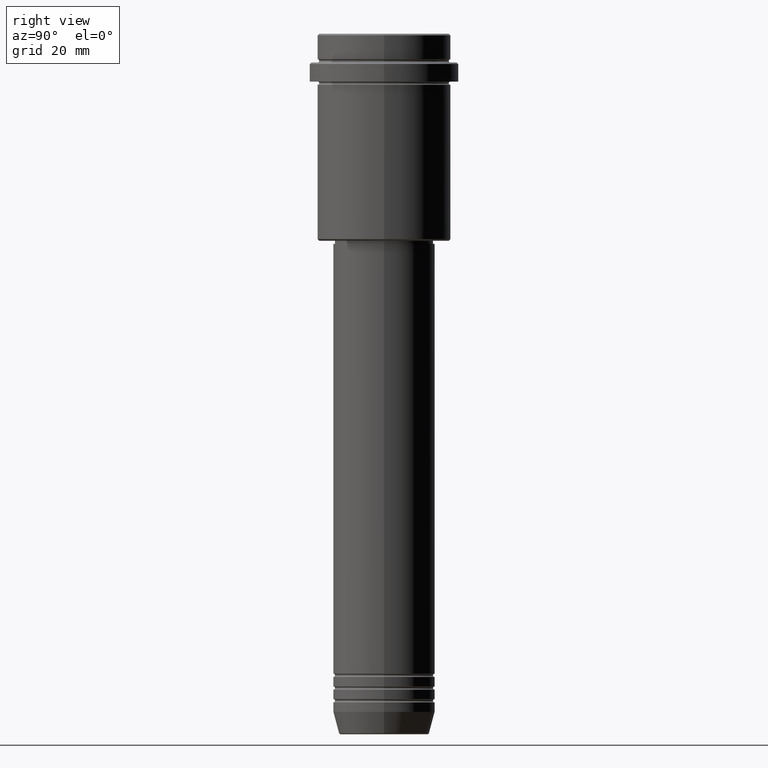
[diagram: clean part render]
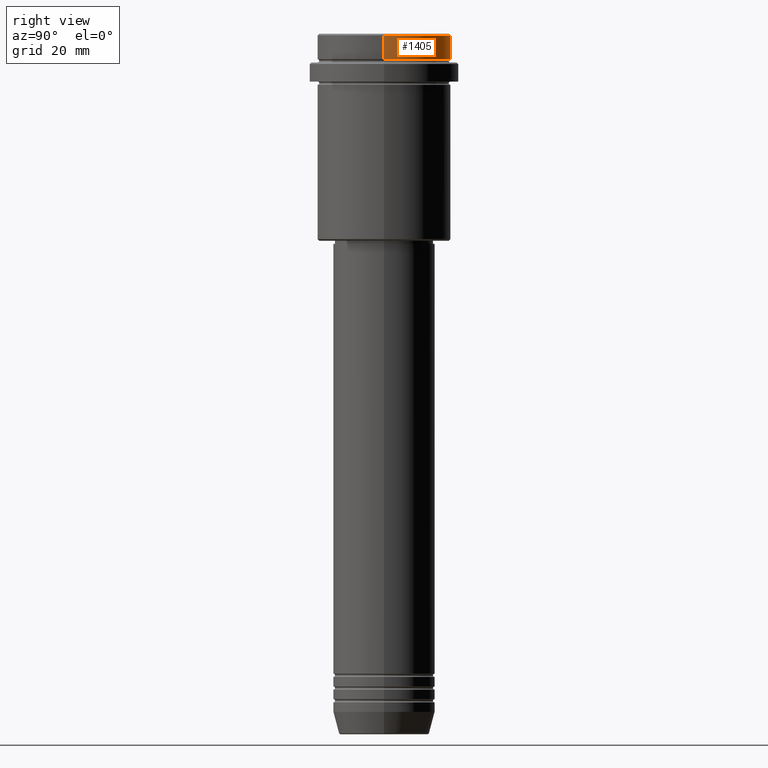
[diagram: same view with one face highlighted and labeled with its STEP entity id]
A machine part, right view. The second image highlights one B-rep face of the part: STEP entity #1405.
In plain terms, the highlighted cylindrical surface (partial cylindrical patch) has radius 21 mm, axis along (-0, -0, 1).
Its self-contained STEP definition (entity closure, byte-faithful):
#20 = VERTEX_POINT ( 'NONE', #318 ) ;
#56 = EDGE_CURVE ( 'NONE', #20, #407, #1275, .T. ) ;
#158 = AXIS2_PLACEMENT_3D ( 'NONE', #741, #1175, #1182 ) ;
#237 = VERTEX_POINT ( 'NONE', #571 ) ;
#318 = CARTESIAN_POINT ( 'NONE',  ( 20.99999999999999645, 0.000000000000000000, -7.999999999999998224 ) ) ;
#407 = VERTEX_POINT ( 'NONE', #1302 ) ;
#431 = ORIENTED_EDGE ( 'NONE', *, *, #498, .F. ) ;
#457 = DIRECTION ( 'NONE',  ( 1.000000000000000000, 0.000000000000000000, 0.000000000000000000 ) ) ;
#498 = EDGE_CURVE ( 'NONE', #20, #237, #654, .T. ) ;
#571 = CARTESIAN_POINT ( 'NONE',  ( 20.99999999999999645, 0.000000000000000000, -0.5000000000000073275 ) ) ;
#640 = ORIENTED_EDGE ( 'NONE', *, *, #56, .T. ) ;
#654 = LINE ( 'NONE', #1093, #1315 ) ;
#702 = VERTEX_POINT ( 'NONE', #723 ) ;
#723 = CARTESIAN_POINT ( 'NONE',  ( -20.99999999999999645, 2.571758278209441267E-15, -0.5000000000000073275 ) ) ;
#741 = CARTESIAN_POINT ( 'NONE',  ( 0.000000000000000000, 0.000000000000000000, -0.5000000000000073275 ) ) ;
#764 = EDGE_CURVE ( 'NONE', #407, #702, #1039, .T. ) ;
#770 = ORIENTED_EDGE ( 'NONE', *, *, #764, .T. ) ;
#784 = CIRCLE ( 'NONE', #158, 20.99999999999999645 ) ;
#828 = VECTOR ( 'NONE', #1355, 1000.000000000000000 ) ;
#859 = DIRECTION ( 'NONE',  ( -0.000000000000000000, -0.000000000000000000, 1.000000000000000000 ) ) ;
#886 = ORIENTED_EDGE ( 'NONE', *, *, #1304, .T. ) ;
#923 = DIRECTION ( 'NONE',  ( -0.000000000000000000, -0.000000000000000000, 1.000000000000000000 ) ) ;
#966 = AXIS2_PLACEMENT_3D ( 'NONE', #1036, #1139, #457 ) ;
#1021 = CYLINDRICAL_SURFACE ( 'NONE', #966, 20.99999999999999645 ) ;
#1024 = CARTESIAN_POINT ( 'NONE',  ( 0.000000000000000000, 0.000000000000000000, -7.999999999999998224 ) ) ;
#1036 = CARTESIAN_POINT ( 'NONE',  ( 0.000000000000000000, 0.000000000000000000, 0.000000000000000000 ) ) ;
#1038 = EDGE_LOOP ( 'NONE', ( #640, #770, #886, #431 ) ) ;
#1039 = LINE ( 'NONE', #1374, #828 ) ;
#1064 = DIRECTION ( 'NONE',  ( 1.000000000000000000, 0.000000000000000000, 0.000000000000000000 ) ) ;
#1093 = CARTESIAN_POINT ( 'NONE',  ( 20.99999999999999645, 0.000000000000000000, 0.000000000000000000 ) ) ;
#1139 = DIRECTION ( 'NONE',  ( -0.000000000000000000, -0.000000000000000000, 1.000000000000000000 ) ) ;
#1175 = DIRECTION ( 'NONE',  ( 0.000000000000000000, 0.000000000000000000, -1.000000000000000000 ) ) ;
#1182 = DIRECTION ( 'NONE',  ( 1.000000000000000000, 0.000000000000000000, 0.000000000000000000 ) ) ;
#1193 = AXIS2_PLACEMENT_3D ( 'NONE', #1024, #923, #1064 ) ;
#1237 = FACE_OUTER_BOUND ( 'NONE', #1038, .T. ) ;
#1275 = CIRCLE ( 'NONE', #1193, 20.99999999999999645 ) ;
#1302 = CARTESIAN_POINT ( 'NONE',  ( -20.99999999999999645, 2.571758278209441267E-15, -7.999999999999998224 ) ) ;
#1304 = EDGE_CURVE ( 'NONE', #702, #237, #784, .T. ) ;
#1315 = VECTOR ( 'NONE', #859, 1000.000000000000000 ) ;
#1355 = DIRECTION ( 'NONE',  ( -0.000000000000000000, -0.000000000000000000, 1.000000000000000000 ) ) ;
#1374 = CARTESIAN_POINT ( 'NONE',  ( -20.99999999999999645, 2.571758278209441267E-15, 0.000000000000000000 ) ) ;
#1405 = ADVANCED_FACE ( 'NONE', ( #1237 ), #1021, .T. ) ;